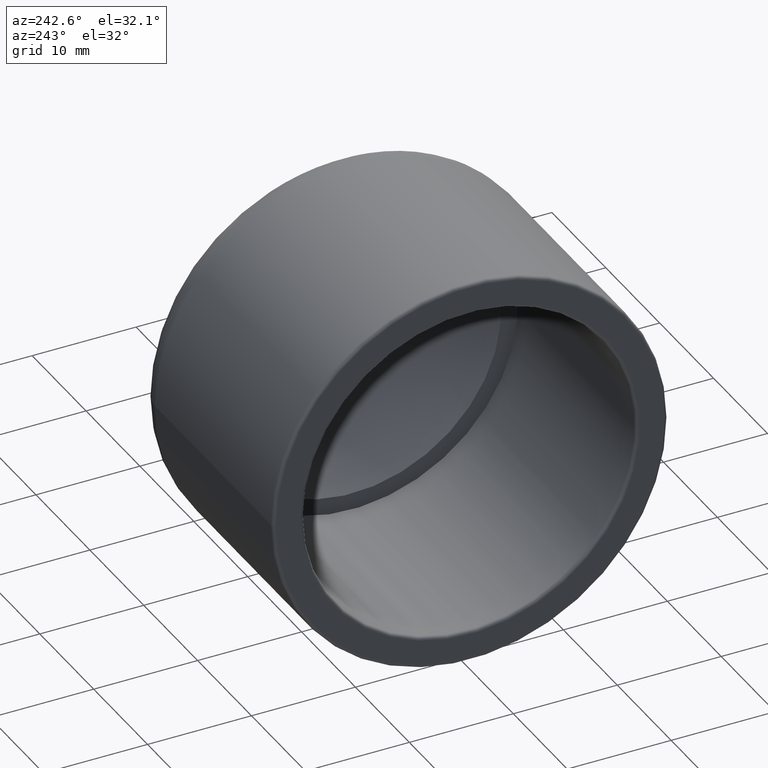
[diagram: clean part render]
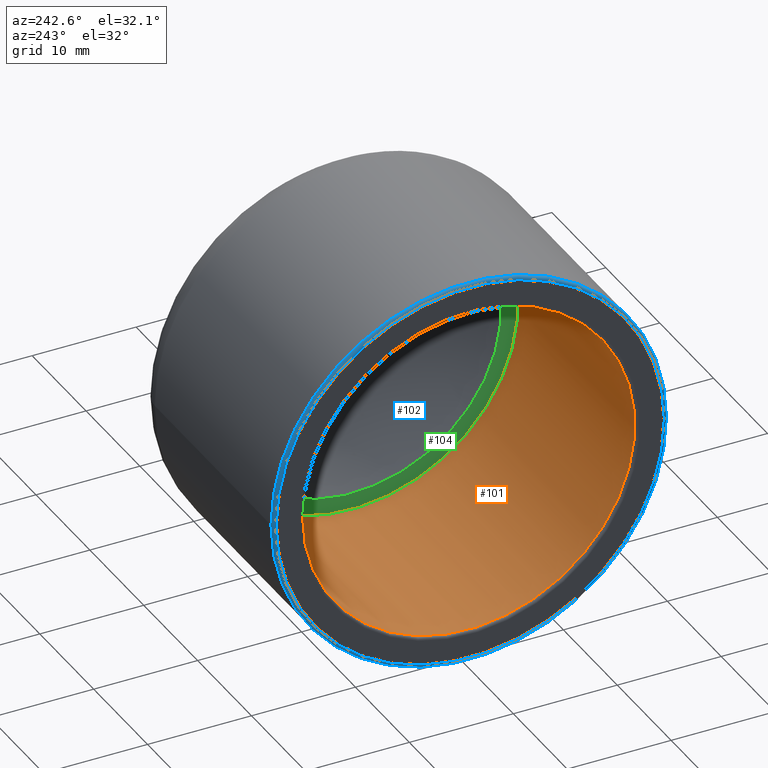
[diagram: same view with three faces highlighted in distinct colors, each labeled with its STEP entity id]
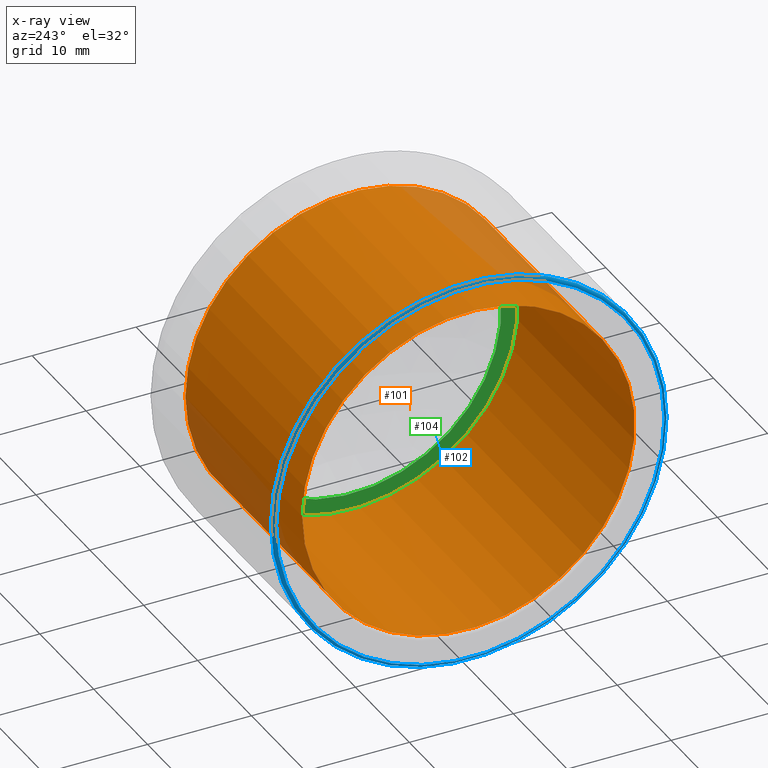
[diagram: x-ray of the same camera — body ghosted, the three highlighted faces saturated]
A machine part, auxiliary view with three faces highlighted in distinct colors.
The next image is the same camera in x-ray (body ghosted, the three faces saturated) — at least one of them is partly hidden behind the body in this view.
Their STEP definitions:

[orange] entity #101 — the highlighted cylindrical surface (bore or boss wall) has radius 16 mm, axis along (1, 0, 0).
#20=CYLINDRICAL_SURFACE('',#118,16.);
#25=FACE_BOUND('',#47,.T.);
#33=FACE_OUTER_BOUND('',#46,.T.);
#46=EDGE_LOOP('',(#86));
#47=EDGE_LOOP('',(#87));
#56=CIRCLE('',#114,16.);
#59=CIRCLE('',#119,16.);
#64=VERTEX_POINT('',#171);
#67=VERTEX_POINT('',#179);
#72=EDGE_CURVE('',#64,#64,#56,.T.);
#75=EDGE_CURVE('',#67,#67,#59,.T.);
#86=ORIENTED_EDGE('',*,*,#75,.T.);
#87=ORIENTED_EDGE('',*,*,#72,.F.);
#101=ADVANCED_FACE('',(#33,#25),#20,.F.);
#114=AXIS2_PLACEMENT_3D('',#172,#140,#141);
#118=AXIS2_PLACEMENT_3D('',#178,#148,#149);
#119=AXIS2_PLACEMENT_3D('',#180,#150,#151);
#140=DIRECTION('center_axis',(1.,2.39838248677285E-16,0.));
#141=DIRECTION('ref_axis',(2.38524477946811E-16,-1.,1.83697019872103E-16));
#148=DIRECTION('center_axis',(1.,2.39838248677285E-16,0.));
#149=DIRECTION('ref_axis',(-2.3373116307898E-16,1.,0.));
#150=DIRECTION('center_axis',(1.,2.39838248677285E-16,0.));
#151=DIRECTION('ref_axis',(0.,0.,-1.));
#171=CARTESIAN_POINT('',(-31.68,16.,-9.79717439317882E-16));
#172=CARTESIAN_POINT('Origin',(-31.68,-7.59807571809638E-15,0.));
#178=CARTESIAN_POINT('Origin',(-21.,-5.03660322222298E-15,0.));
#179=CARTESIAN_POINT('',(-10.,16.,0.));
#180=CARTESIAN_POINT('Origin',(-10.,-2.39838248677285E-15,0.));

[blue] entity #102 — the highlighted toroidal blend (fillet) surface has major radius 18.68 mm and minor (blend) radius 0.32 mm.
#26=FACE_BOUND('',#49,.T.);
#34=FACE_OUTER_BOUND('',#48,.T.);
#48=EDGE_LOOP('',(#88));
#49=EDGE_LOOP('',(#89));
#55=CIRCLE('',#111,19.);
#58=CIRCLE('',#117,18.68);
#63=VERTEX_POINT('',#167);
#66=VERTEX_POINT('',#176);
#71=EDGE_CURVE('',#63,#63,#55,.T.);
#74=EDGE_CURVE('',#66,#66,#58,.T.);
#88=ORIENTED_EDGE('',*,*,#74,.T.);
#89=ORIENTED_EDGE('',*,*,#71,.T.);
#95=TOROIDAL_SURFACE('',#120,18.68,0.32);
#102=ADVANCED_FACE('',(#34,#26),#95,.T.);
#111=AXIS2_PLACEMENT_3D('',#168,#134,#135);
#117=AXIS2_PLACEMENT_3D('',#177,#146,#147);
#120=AXIS2_PLACEMENT_3D('',#181,#152,#153);
#134=DIRECTION('center_axis',(-1.,-2.39838248677285E-16,0.));
#135=DIRECTION('ref_axis',(2.41035261925198E-16,-1.,1.83697019872103E-16));
#146=DIRECTION('center_axis',(1.,2.39838248677285E-16,0.));
#147=DIRECTION('ref_axis',(2.39838248677285E-16,-1.,1.83697019872103E-16));
#152=DIRECTION('center_axis',(1.,2.39838248677285E-16,0.));
#153=DIRECTION('ref_axis',(0.,0.,-1.));
#167=CARTESIAN_POINT('',(-31.68,19.,-5.81707229594993E-15));
#168=CARTESIAN_POINT('Origin',(-31.68,-7.59807571809638E-15,0.));
#176=CARTESIAN_POINT('',(-32.,18.68,-1.14382011040363E-15));
#177=CARTESIAN_POINT('Origin',(-32.,-7.67482395767311E-15,0.));
#181=CARTESIAN_POINT('Origin',(-31.68,-7.59807571809638E-15,0.));

[green] entity #104 — the highlighted planar face has unit normal (-1, -0, 0).
#16=PLANE('',#123);
#27=FACE_BOUND('',#52,.T.);
#36=FACE_OUTER_BOUND('',#51,.T.);
#51=EDGE_LOOP('',(#91));
#52=EDGE_LOOP('',(#92));
#59=CIRCLE('',#119,16.);
#60=CIRCLE('',#122,14.4);
#67=VERTEX_POINT('',#179);
#68=VERTEX_POINT('',#183);
#75=EDGE_CURVE('',#67,#67,#59,.T.);
#76=EDGE_CURVE('',#68,#68,#60,.T.);
#91=ORIENTED_EDGE('',*,*,#75,.F.);
#92=ORIENTED_EDGE('',*,*,#76,.T.);
#104=ADVANCED_FACE('',(#36,#27),#16,.T.);
#119=AXIS2_PLACEMENT_3D('',#180,#150,#151);
#122=AXIS2_PLACEMENT_3D('',#184,#156,#157);
#123=AXIS2_PLACEMENT_3D('',#185,#158,#159);
#150=DIRECTION('center_axis',(1.,2.39838248677285E-16,0.));
#151=DIRECTION('ref_axis',(0.,0.,-1.));
#156=DIRECTION('center_axis',(1.,2.39838248677285E-16,0.));
#157=DIRECTION('ref_axis',(0.,0.,-1.));
#158=DIRECTION('center_axis',(-1.,-2.39838248677285E-16,0.));
#159=DIRECTION('ref_axis',(0.,0.,1.));
#179=CARTESIAN_POINT('',(-10.,16.,0.));
#180=CARTESIAN_POINT('Origin',(-10.,-2.39838248677285E-15,0.));
#183=CARTESIAN_POINT('',(-10.,14.4,0.));
#184=CARTESIAN_POINT('Origin',(-10.,-2.39838248677285E-15,0.));
#185=CARTESIAN_POINT('Origin',(-10.,16.,0.));